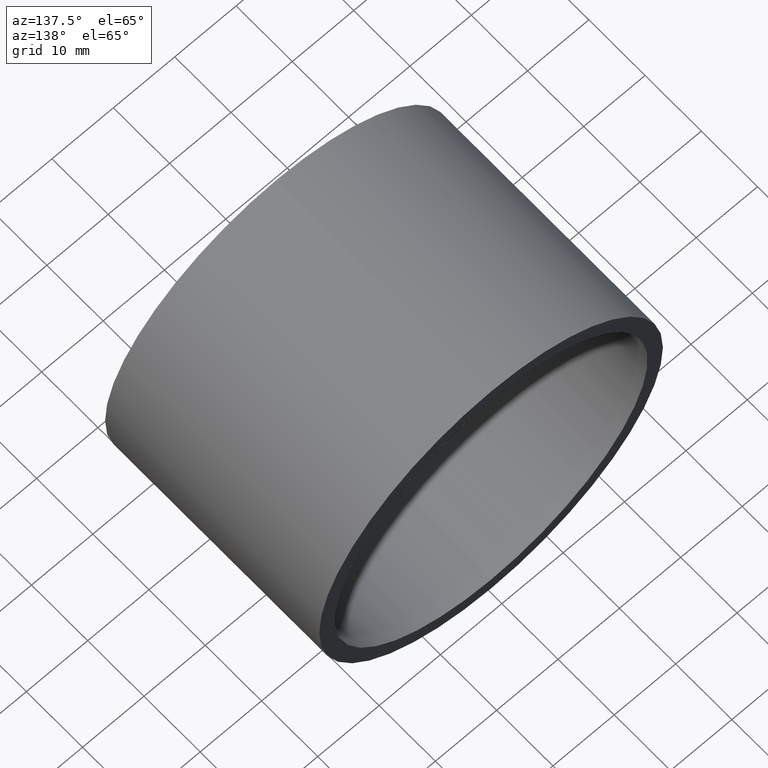
[diagram: clean part render]
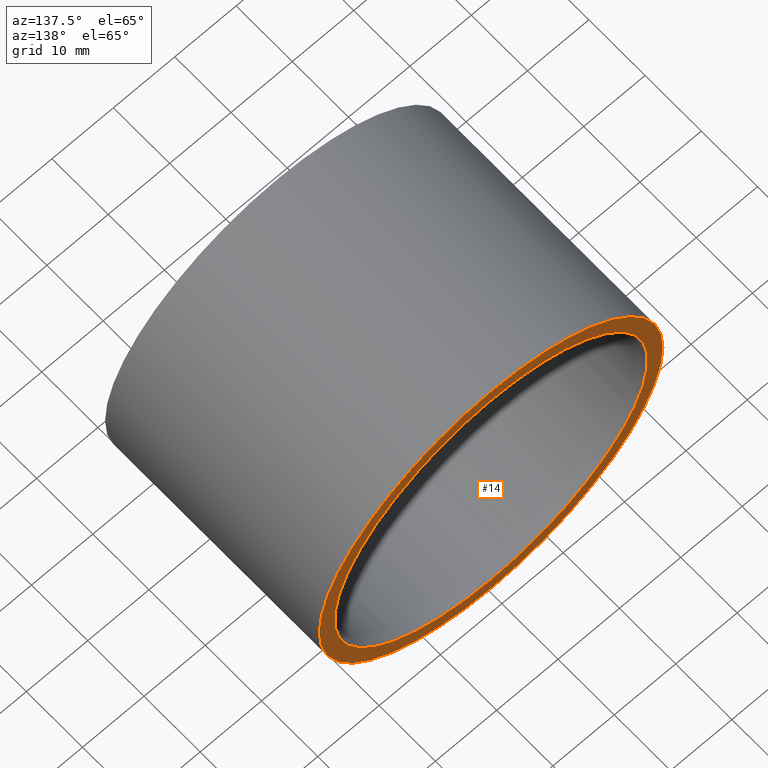
[diagram: same view with one face highlighted and labeled with its STEP entity id]
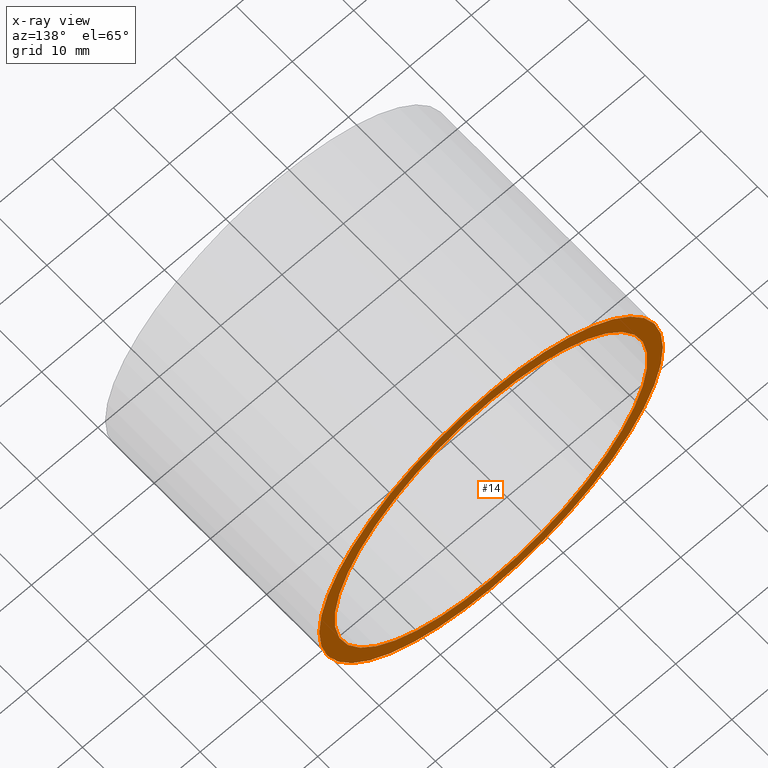
[diagram: x-ray of the same camera — body ghosted, the highlighted face saturated]
A machine part, auxiliary view. The second image highlights one B-rep face of the part: STEP entity #14.
The next image is the same camera in x-ray: the body ghosted, the highlighted face saturated — about 0% of this face is hidden behind the body in this view.
In plain terms, the highlighted planar face has unit normal (0, -1, 0).
Its self-contained STEP definition (entity closure, byte-faithful):
#1 = EDGE_CURVE ( 'NONE', #181, #240, #42, .T. ) ;
#2 = FACE_BOUND ( 'NONE', #231, .T. ) ;
#8 = CARTESIAN_POINT ( 'NONE',  ( 3.122849337825752200E-015, 38.09999999999999400, -25.50000000000001100 ) ) ;
#10 = CIRCLE ( 'NONE', #189, 25.50000000000001100 ) ;
#11 = VERTEX_POINT ( 'NONE', #8 ) ;
#13 = CARTESIAN_POINT ( 'NONE',  ( 0.0000000000000000000, 38.09999999999999400, 0.0000000000000000000 ) ) ;
#14 = ADVANCED_FACE ( 'NONE', ( #2, #97 ), #153, .F. ) ;
#23 = CARTESIAN_POINT ( 'NONE',  ( 0.0000000000000000000, 38.09999999999999400, 0.0000000000000000000 ) ) ;
#25 = DIRECTION ( 'NONE',  ( 0.0000000000000000000, 0.0000000000000000000, 1.000000000000000000 ) ) ;
#27 = EDGE_CURVE ( 'NONE', #11, #31, #99, .T. ) ;
#31 = VERTEX_POINT ( 'NONE', #215 ) ;
#42 = CIRCLE ( 'NONE', #92, 28.00000000000002100 ) ;
#43 = DIRECTION ( 'NONE',  ( -0.0000000000000000000, 1.000000000000000000, -0.0000000000000000000 ) ) ;
#48 = DIRECTION ( 'NONE',  ( 0.0000000000000000000, -1.000000000000000000, 0.0000000000000000000 ) ) ;
#49 = EDGE_CURVE ( 'NONE', #31, #11, #10, .T. ) ;
#50 = AXIS2_PLACEMENT_3D ( 'NONE', #96, #48, #62 ) ;
#54 = EDGE_LOOP ( 'NONE', ( #82, #182 ) ) ;
#57 = DIRECTION ( 'NONE',  ( 0.0000000000000000000, 0.0000000000000000000, 1.000000000000000000 ) ) ;
#58 = DIRECTION ( 'NONE',  ( 0.0000000000000000000, 0.0000000000000000000, 1.000000000000000000 ) ) ;
#62 = DIRECTION ( 'NONE',  ( 0.0000000000000000000, -0.0000000000000000000, -1.000000000000000000 ) ) ;
#78 = EDGE_CURVE ( 'NONE', #240, #181, #205, .T. ) ;
#82 = ORIENTED_EDGE ( 'NONE', *, *, #1, .T. ) ;
#92 = AXIS2_PLACEMENT_3D ( 'NONE', #23, #43, #57 ) ;
#96 = CARTESIAN_POINT ( 'NONE',  ( 25.50000000000001100, 38.09999999999998700, 0.0000000000000000000 ) ) ;
#97 = FACE_OUTER_BOUND ( 'NONE', #54, .T. ) ;
#99 = CIRCLE ( 'NONE', #201, 25.50000000000001100 ) ;
#111 = DIRECTION ( 'NONE',  ( 0.0000000000000000000, 0.0000000000000000000, 1.000000000000000000 ) ) ;
#114 = DIRECTION ( 'NONE',  ( -0.0000000000000000000, 1.000000000000000000, -0.0000000000000000000 ) ) ;
#121 = ORIENTED_EDGE ( 'NONE', *, *, #49, .F. ) ;
#124 = CARTESIAN_POINT ( 'NONE',  ( 3.429011037612591600E-015, 38.09999999999999400, -28.00000000000002100 ) ) ;
#135 = DIRECTION ( 'NONE',  ( -0.0000000000000000000, 1.000000000000000000, -0.0000000000000000000 ) ) ;
#137 = DIRECTION ( 'NONE',  ( -0.0000000000000000000, 1.000000000000000000, -0.0000000000000000000 ) ) ;
#153 = PLANE ( 'NONE',  #50 ) ;
#160 = ORIENTED_EDGE ( 'NONE', *, *, #27, .F. ) ;
#175 = CARTESIAN_POINT ( 'NONE',  ( 0.0000000000000000000, 38.09999999999999400, 28.00000000000002100 ) ) ;
#181 = VERTEX_POINT ( 'NONE', #175 ) ;
#182 = ORIENTED_EDGE ( 'NONE', *, *, #78, .T. ) ;
#189 = AXIS2_PLACEMENT_3D ( 'NONE', #192, #137, #25 ) ;
#192 = CARTESIAN_POINT ( 'NONE',  ( 0.0000000000000000000, 38.09999999999999400, 0.0000000000000000000 ) ) ;
#201 = AXIS2_PLACEMENT_3D ( 'NONE', #216, #114, #58 ) ;
#205 = CIRCLE ( 'NONE', #222, 28.00000000000002100 ) ;
#215 = CARTESIAN_POINT ( 'NONE',  ( 0.0000000000000000000, 38.09999999999999400, 25.50000000000001100 ) ) ;
#216 = CARTESIAN_POINT ( 'NONE',  ( 0.0000000000000000000, 38.09999999999999400, 0.0000000000000000000 ) ) ;
#222 = AXIS2_PLACEMENT_3D ( 'NONE', #13, #135, #111 ) ;
#231 = EDGE_LOOP ( 'NONE', ( #121, #160 ) ) ;
#240 = VERTEX_POINT ( 'NONE', #124 ) ;